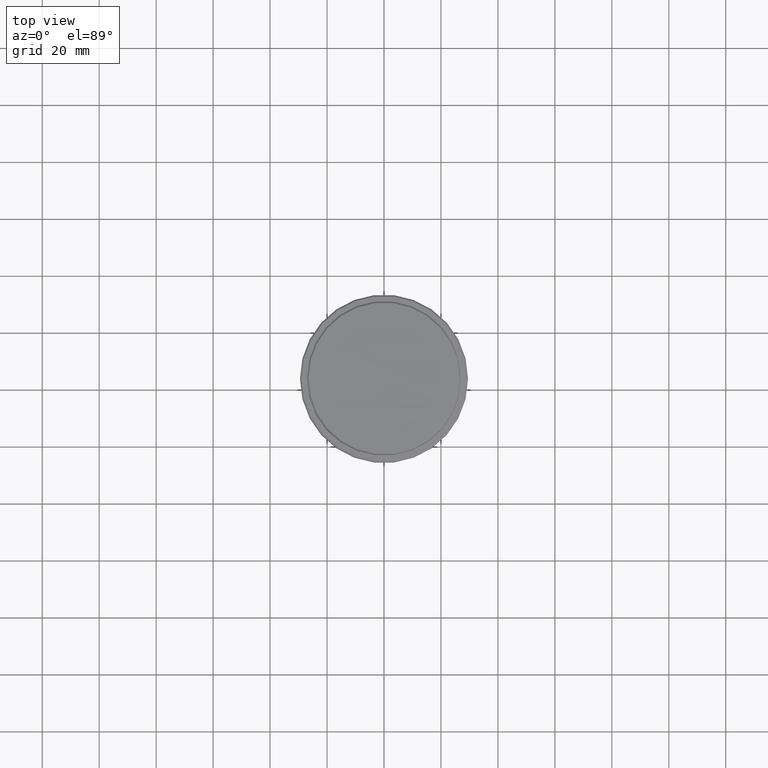
[diagram: clean part render]
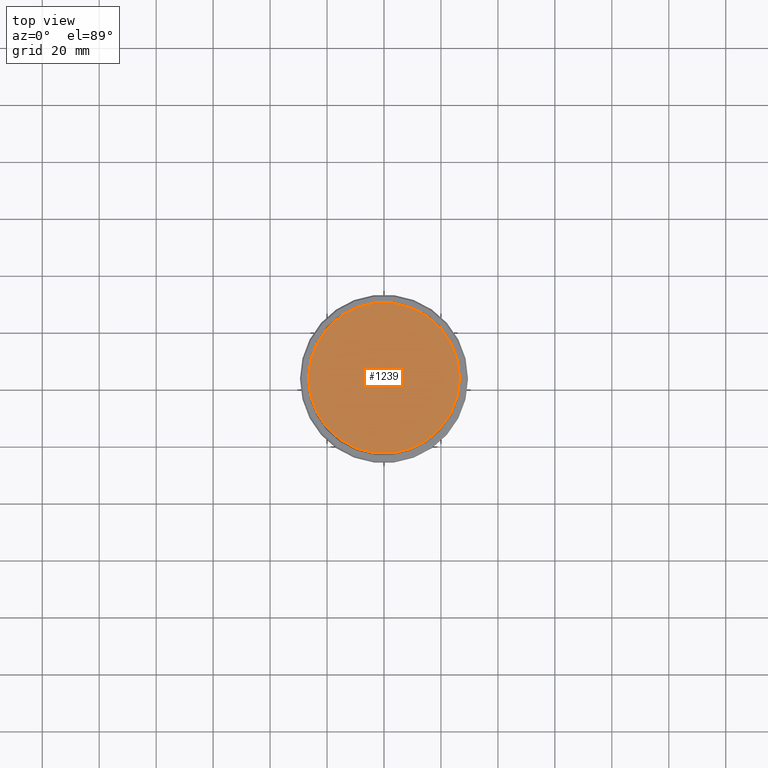
[diagram: same view with one face highlighted and labeled with its STEP entity id]
A machine part, top view. The second image highlights one B-rep face of the part: STEP entity #1239.
In plain terms, the highlighted planar face has unit normal (0, -0, 1).
Its self-contained STEP definition (entity closure, byte-faithful):
#42 = AXIS2_PLACEMENT_3D ( 'NONE', #569, #582, #1338 ) ;
#95 = CARTESIAN_POINT ( 'NONE',  ( -26.50000000000004974, 0.000000000000000000, 0.000000000000000000 ) ) ;
#163 = EDGE_CURVE ( 'NONE', #970, #534, #292, .T. ) ;
#292 = CIRCLE ( 'NONE', #649, 26.50000000000004974 ) ;
#324 = DIRECTION ( 'NONE',  ( 1.000000000000000000, 0.000000000000000000, 0.000000000000000000 ) ) ;
#389 = ORIENTED_EDGE ( 'NONE', *, *, #1079, .T. ) ;
#406 = CARTESIAN_POINT ( 'NONE',  ( 26.50000000000004974, 3.275930187719173496E-15, 0.000000000000000000 ) ) ;
#493 = AXIS2_PLACEMENT_3D ( 'NONE', #656, #870, #324 ) ;
#534 = VERTEX_POINT ( 'NONE', #95 ) ;
#538 = CIRCLE ( 'NONE', #493, 26.50000000000004974 ) ;
#544 = EDGE_LOOP ( 'NONE', ( #389, #1271 ) ) ;
#566 = DIRECTION ( 'NONE',  ( -0.000000000000000000, -0.000000000000000000, 1.000000000000000000 ) ) ;
#569 = CARTESIAN_POINT ( 'NONE',  ( 0.000000000000000000, 0.000000000000000000, 0.000000000000000000 ) ) ;
#582 = DIRECTION ( 'NONE',  ( 0.000000000000000000, -0.000000000000000000, 1.000000000000000000 ) ) ;
#649 = AXIS2_PLACEMENT_3D ( 'NONE', #1405, #566, #650 ) ;
#650 = DIRECTION ( 'NONE',  ( 1.000000000000000000, 0.000000000000000000, 0.000000000000000000 ) ) ;
#656 = CARTESIAN_POINT ( 'NONE',  ( 0.000000000000000000, 0.000000000000000000, 0.000000000000000000 ) ) ;
#685 = PLANE ( 'NONE',  #42 ) ;
#870 = DIRECTION ( 'NONE',  ( -0.000000000000000000, -0.000000000000000000, 1.000000000000000000 ) ) ;
#970 = VERTEX_POINT ( 'NONE', #406 ) ;
#1079 = EDGE_CURVE ( 'NONE', #534, #970, #538, .T. ) ;
#1222 = FACE_OUTER_BOUND ( 'NONE', #544, .T. ) ;
#1239 = ADVANCED_FACE ( 'NONE', ( #1222 ), #685, .T. ) ;
#1271 = ORIENTED_EDGE ( 'NONE', *, *, #163, .T. ) ;
#1338 = DIRECTION ( 'NONE',  ( 1.000000000000000000, 0.000000000000000000, 0.000000000000000000 ) ) ;
#1405 = CARTESIAN_POINT ( 'NONE',  ( 0.000000000000000000, 0.000000000000000000, 0.000000000000000000 ) ) ;